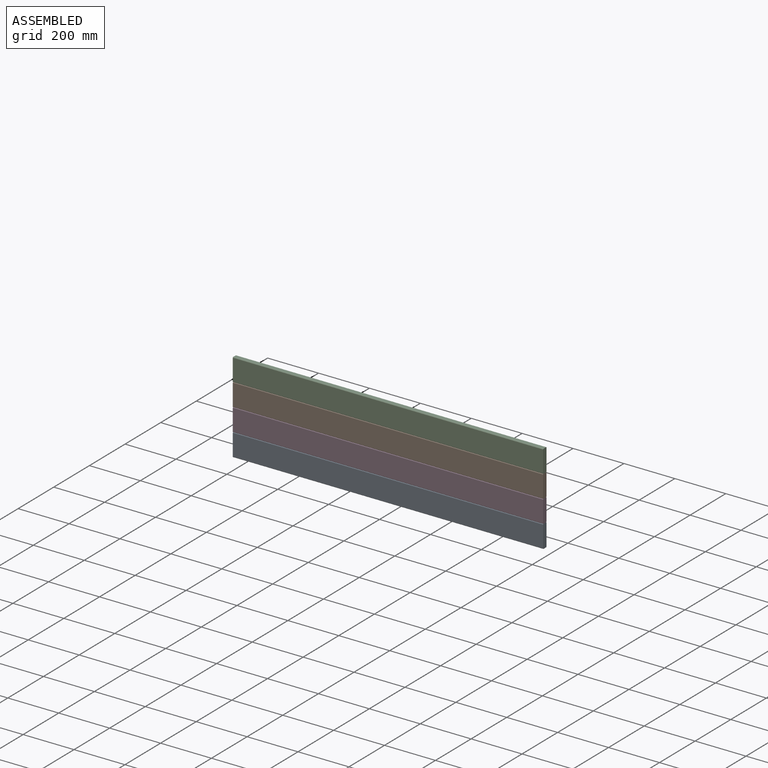
[diagram: assembled view]
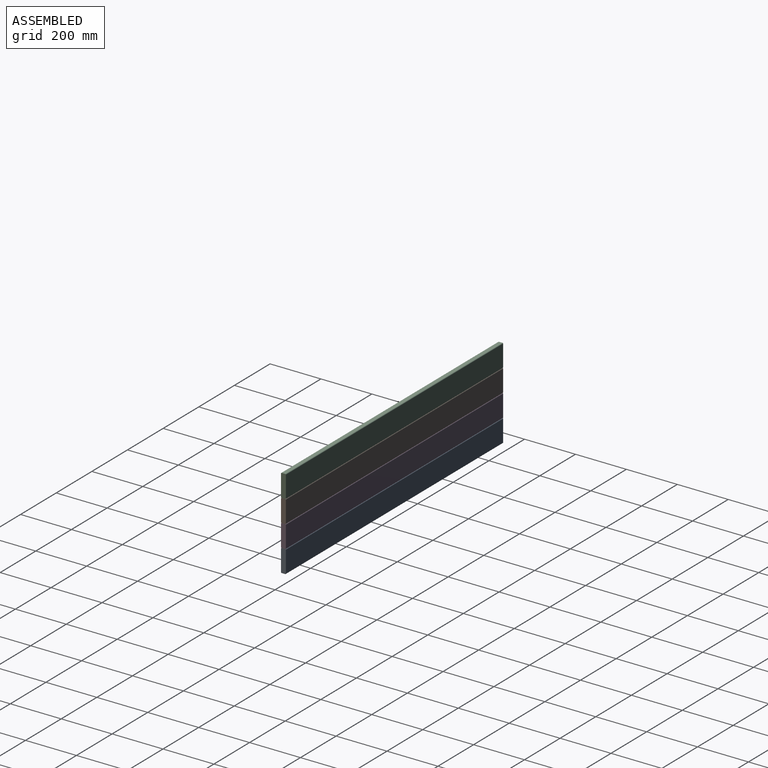
[diagram: assembled view, second angle]
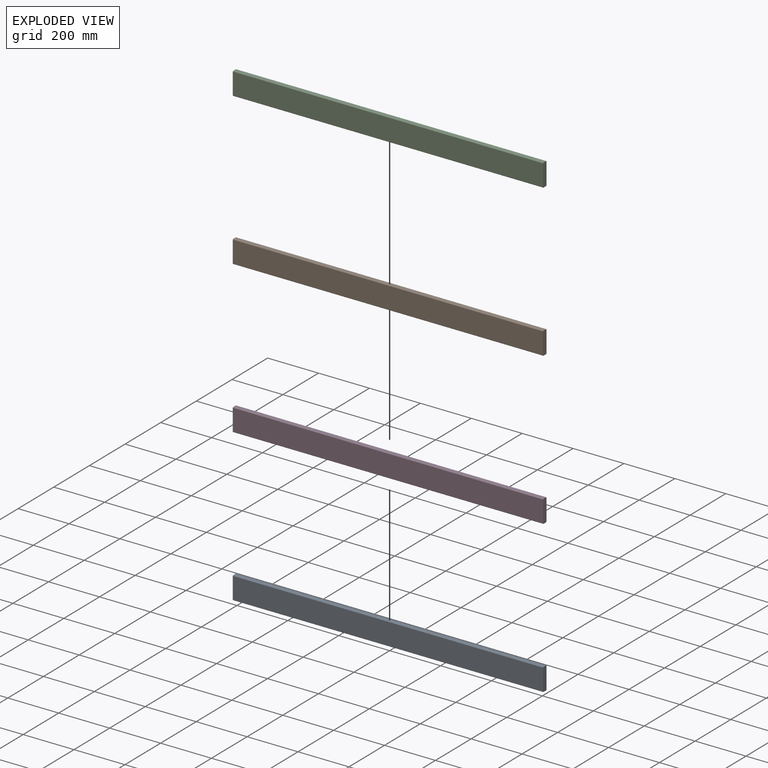
[diagram: exploded view]
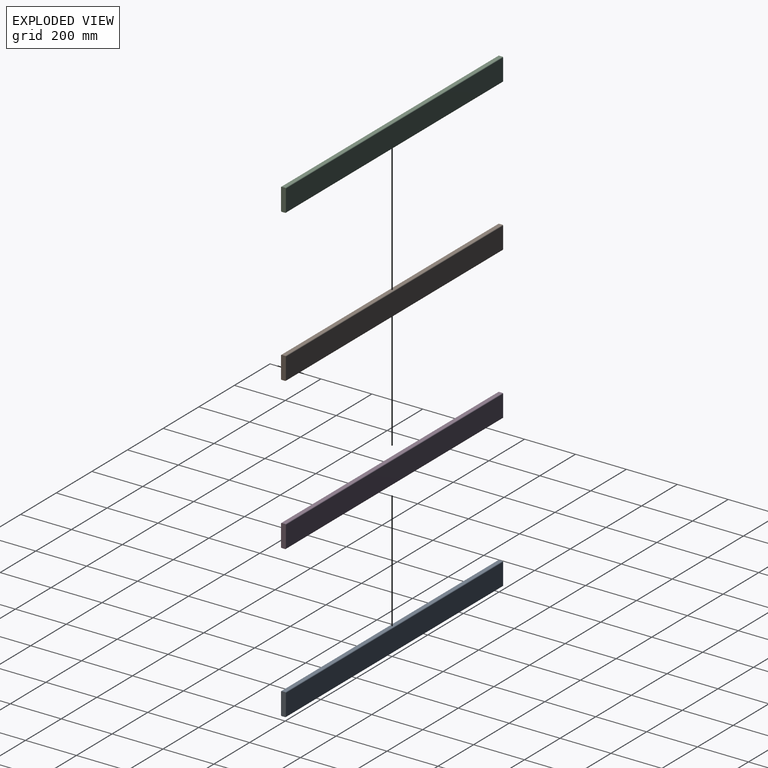
[diagram: exploded view, second angle]
ASSEMBLY  parts=4 mates=9
PART A: 10 faces, bbox 1219.2x19.1x88.9 mm
  f0: plane 1219.2x13.97mm, normal (0,0,1), area 17032.2mm2, adj f4,f5,f6,f9
  f1: plane 1219.2x83.82mm, normal (0,-1,0), area 102193.3mm2, adj f4,f5,f6,f7
  f2: plane 1219.2x13.97mm, normal (0,0,-1), area 17032.2mm2, adj f4,f5,f7,f8
  f3: plane 1219.2x83.82mm, normal (0,1,0), area 102193.3mm2, adj f4,f5,f8,f9
  f4: plane 88.9x19.05mm, normal (1,0,0), area 1688mm2, adj f0,f1,f2,f3,f6,f7,f8,f9
  f5: plane 88.9x19.05mm, normal (-1,0,0), area 1688mm2, adj f0,f1,f2,f3,f6,f7,f8,f9
  f6: cylinder r=2.54mm len=1219.2mm, axis (1,0,0), area 4864.4mm2, adj f0,f1,f4,f5
  f7: cylinder r=2.54mm len=1219.2mm, axis (-1,0,0), area 4864.4mm2, adj f1,f2,f4,f5
  f8: cylinder r=2.54mm len=1219.2mm, axis (1,0,0), area 4864.4mm2, adj f2,f3,f4,f5
  f9: cylinder r=2.54mm len=1219.2mm, axis (-1,0,0), area 4864.4mm2, adj f0,f3,f4,f5
PART B: same geometry as A
PART C: same geometry as A
PART D: same geometry as A
PLACE A at identity fixed
PLACE B t=(0,0,177.8)mm
PLACE C t=(0,0,266.7)mm
PLACE D t=(0,0,88.9)mm
MATE planar D.f2 <-> A.f0  axis (0,0,-1) through (0,0,44.45)mm
MATE planar D.f1 <-> A.f1  axis (0,-1,0) through (0,-9.53,88.9)mm
MATE planar C.f2 <-> B.f0  axis (0,0,-1) through (609.6,-6.99,222.25)mm
MATE planar C.f4 <-> B.f6  axis (1,0,0) through (609.6,0,266.7)mm
MATE planar C.f1 <-> B.f1  axis (0,-1,0) through (0,-9.53,266.7)mm
MATE planar B.f1 <-> D.f1  axis (0,-1,0) through (-609.6,-9.53,177.8)mm
MATE planar D.f4 <-> A.f4  axis (1,0,0) through (609.6,0,88.9)mm
MATE planar B.f4 <-> D.f4  axis (1,0,0) through (609.6,0,177.8)mm
MATE planar B.f2 <-> D.f0  axis (0,0,-1) through (0,0,133.35)mm
